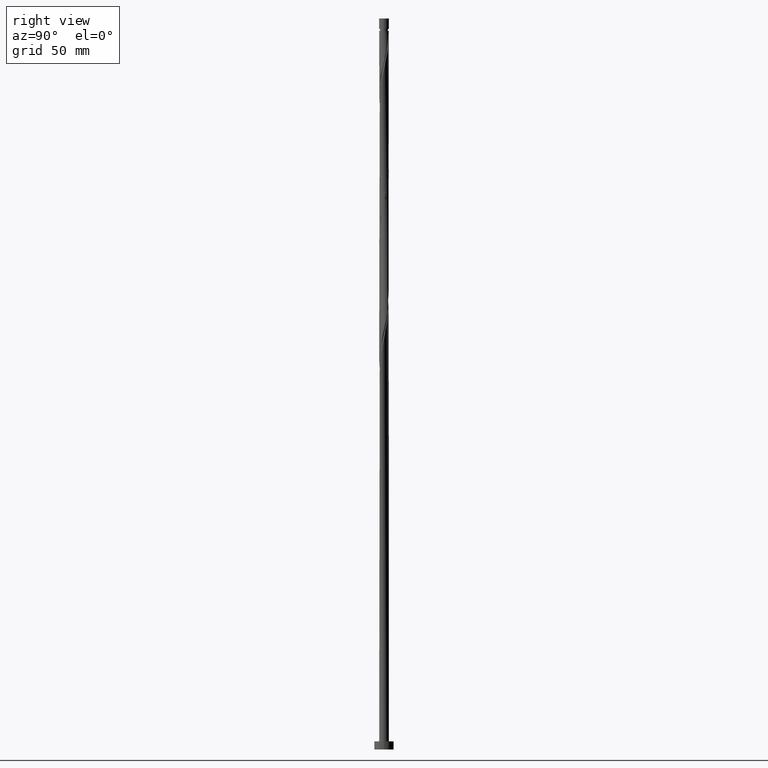
[diagram: clean part render]
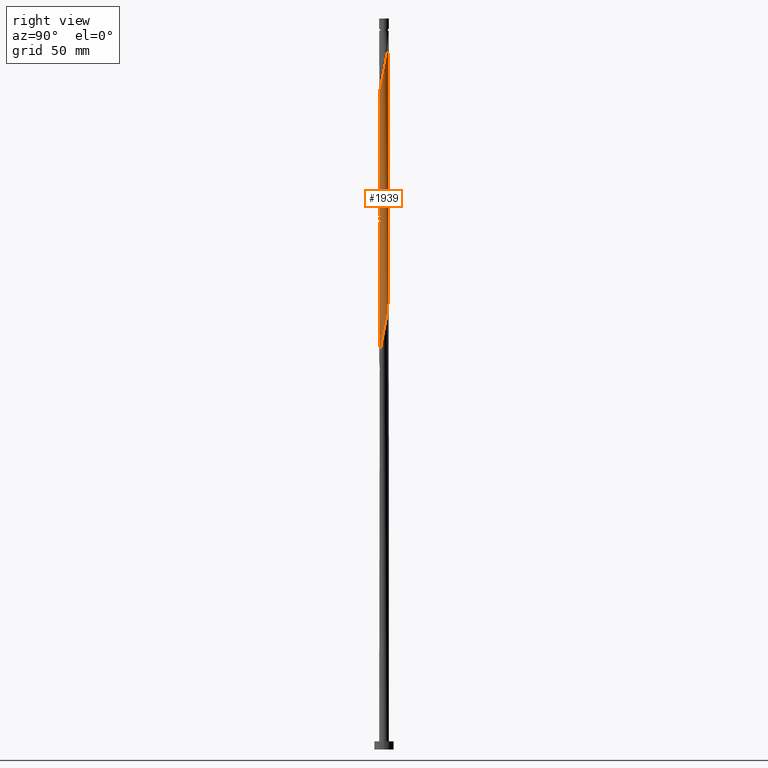
[diagram: same view with one face highlighted and labeled with its STEP entity id]
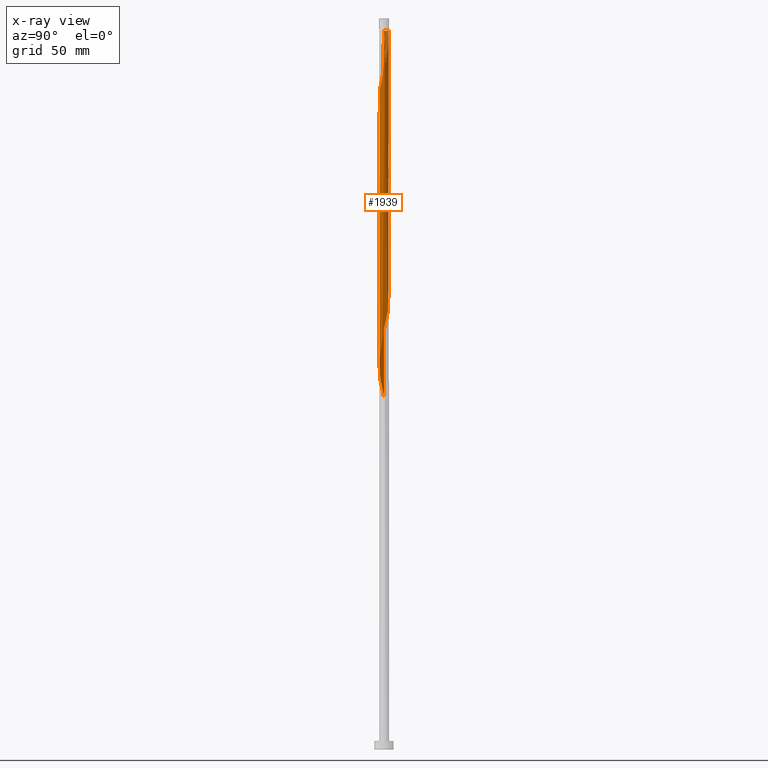
[diagram: x-ray of the same camera — body ghosted, the highlighted face saturated]
A machine part, right view. The second image highlights one B-rep face of the part: STEP entity #1939.
The next image is the same camera in x-ray: the body ghosted, the highlighted face saturated — about 0% of this face is hidden behind the body in this view.
In plain terms, the highlighted cylindrical surface (bore or boss wall) has radius 3 mm, axis along (-0, -0, -1).
Its self-contained STEP definition (entity closure, byte-faithful):
#1 = CARTESIAN_POINT ( 'NONE',  ( 0.8865571881340386096, 2.881201374597972098, 276.4699574549397312 ) ) ;
#12 = CARTESIAN_POINT ( 'NONE',  ( 1.921660071883963816, 2.322612231291373508, 271.2616241216064168 ) ) ;
#32 = CARTESIAN_POINT ( 'NONE',  ( -0.5969924622639762868, -2.939999999999999947, 236.1053741216064168 ) ) ;
#39 = ORIENTED_EDGE ( 'NONE', *, *, #650, .F. ) ;
#40 = CARTESIAN_POINT ( 'NONE',  ( -1.159086966227606652, -2.767041272681216579, 233.5012074549397312 ) ) ;
#48 = CARTESIAN_POINT ( 'NONE',  ( 2.487746701027917062, -1.676638408102569588, 251.7303741216064736 ) ) ;
#52 = CARTESIAN_POINT ( 'NONE',  ( 2.664207629581487602, -1.410426430302975209, 414.4907907882732161 ) ) ;
#55 = CARTESIAN_POINT ( 'NONE',  ( -2.664207629581484937, -1.410426430302971212, 224.3866241216063884 ) ) ;
#56 = EDGE_CURVE ( 'NONE', #1948, #1975, #1019, .T. ) ;
#62 = CARTESIAN_POINT ( 'NONE',  ( -0.5735401742041612572, -2.944664950138451864, 397.5637074549397880 ) ) ;
#65 = ORIENTED_EDGE ( 'NONE', *, *, #56, .T. ) ;
#75 = CARTESIAN_POINT ( 'NONE',  ( 1.159086966227607096, -2.767041272681220576, 405.3762074549398449 ) ) ;
#82 = CARTESIAN_POINT ( 'NONE',  ( 2.998798625402026907, -0.3074277363939145191, 341.5741241216063031 ) ) ;
#117 = CARTESIAN_POINT ( 'NONE',  ( 3.000000000000000000, -0.005977960122782764903, 342.9025508784193903 ) ) ;
#126 = CARTESIAN_POINT ( 'NONE',  ( 2.888176173499367394, 0.8635643575599492028, 263.4491241216063599 ) ) ;
#137 = CARTESIAN_POINT ( 'NONE',  ( -1.903086606305704365, 2.337855080563637777, 289.4907907882730456 ) ) ;
#144 = CARTESIAN_POINT ( 'NONE',  ( -2.767041272681216579, 1.159086966227606208, 296.0012074549397312 ) ) ;
#148 = CARTESIAN_POINT ( 'NONE',  ( 0.000000000000000000, 0.000000000000000000, 444.4387074549397312 ) ) ;
#152 = CARTESIAN_POINT ( 'NONE',  ( -2.129757576223800353, -2.112849418798540491, 311.6262074549397312 ) ) ;
#159 = CARTESIAN_POINT ( 'NONE',  ( -1.159086966227606652, -2.767041272681216579, 316.8345407882730456 ) ) ;
#163 = CARTESIAN_POINT ( 'NONE',  ( -3.000000000000004885, 1.538591617271993289E-15, 379.2818438102762570 ) ) ;
#169 = CARTESIAN_POINT ( 'NONE',  ( -2.322612231291373952, 1.921660071883963816, 375.4282907882731024 ) ) ;
#180 = CARTESIAN_POINT ( 'NONE',  ( -2.888176173499367394, -0.8635643575599495358, 221.7824574549397312 ) ) ;
#185 = CARTESIAN_POINT ( 'NONE',  ( 1.656756518304341563, 2.501031355072564022, 434.0220407882730456 ) ) ;
#195 = CARTESIAN_POINT ( 'NONE',  ( -1.656756518304341119, -2.501031355072564022, 392.3553741216064168 ) ) ;
#199 = ORIENTED_EDGE ( 'NONE', *, *, #1603, .F. ) ;
#201 = CARTESIAN_POINT ( 'NONE',  ( -0.8865571881340394977, -2.881201374597972098, 234.8032907882730740 ) ) ;
#206 = CARTESIAN_POINT ( 'NONE',  ( -1.410426430302973655, -2.664207629581488934, 393.6574574549397880 ) ) ;
#216 = CARTESIAN_POINT ( 'NONE',  ( -3.000000000000004441, 1.538591617271993289E-15, 379.2818438102762570 ) ) ;
#226 = CARTESIAN_POINT ( 'NONE',  ( 2.999976176089777624, -0.01195587277277147115, 342.8762074549397880 ) ) ;
#230 = CARTESIAN_POINT ( 'NONE',  ( 2.767041272681220576, 1.159086966227606874, 426.2095407882731024 ) ) ;
#236 = CARTESIAN_POINT ( 'NONE',  ( 2.129757576223800353, 2.112849418798540047, 353.2928741216064168 ) ) ;
#262 = EDGE_CURVE ( 'NONE', #631, #511, #791, .T. ) ;
#270 = CARTESIAN_POINT ( 'NONE',  ( -0.01195587277276973816, 2.999976176089781621, 441.8345407882731024 ) ) ;
#275 = CARTESIAN_POINT ( 'NONE',  ( 0.8635643575599494248, -2.888176173499367394, 325.9491241216063599 ) ) ;
#285 = CARTESIAN_POINT ( 'NONE',  ( -0.5969924622639762868, -2.939999999999999947, 319.4387074549397880 ) ) ;
#295 = CARTESIAN_POINT ( 'NONE',  ( 0.3074277363939131313, 2.998798625402026907, 279.0741241216064168 ) ) ;
#304 = CARTESIAN_POINT ( 'NONE',  ( -2.501031355072561801, -1.656756518304338011, 309.0220407882731024 ) ) ;
#317 = CARTESIAN_POINT ( 'NONE',  ( -2.112849418798540047, 2.129757576223800797, 290.7928741216064168 ) ) ;
#329 = CARTESIAN_POINT ( 'NONE',  ( -2.999999999999999556, 0.005977960122793515851, 384.5692175450858485 ) ) ;
#336 = CARTESIAN_POINT ( 'NONE',  ( -1.136995393931460319, 2.776191901540426166, 368.9178741216064736 ) ) ;
#341 = CARTESIAN_POINT ( 'NONE',  ( -3.000000000000004885, -0.005977960122778104568, 379.3081973647935001 ) ) ;
#350 = VERTEX_POINT ( 'NONE', #163 ) ;
#356 = CARTESIAN_POINT ( 'NONE',  ( -2.112849418798543599, -2.129757576223802573, 389.7512074549397312 ) ) ;
#360 = CARTESIAN_POINT ( 'NONE',  ( -2.998798625402026907, 0.3074277363939129648, 383.2407907882729887 ) ) ;
#364 = CARTESIAN_POINT ( 'NONE',  ( 2.337855080563639110, -1.903086606305708361, 411.8866241216064736 ) ) ;
#371 = CARTESIAN_POINT ( 'NONE',  ( 3.000000000000000444, 1.036289447853704348E-15, 342.9289044329366334 ) ) ;
#379 = CARTESIAN_POINT ( 'NONE',  ( 0.5969924622639766199, 2.939999999999999947, 361.1053741216064168 ) ) ;
#381 = AXIS2_PLACEMENT_3D ( 'NONE', #1040, #426, #752 ) ;
#389 = CARTESIAN_POINT ( 'NONE',  ( -0.8635643575599494248, 2.888176173499367394, 367.6157907882730456 ) ) ;
#396 = DIRECTION ( 'NONE',  ( -0.000000000000000000, -0.000000000000000000, -1.000000000000000000 ) ) ;
#399 = CARTESIAN_POINT ( 'NONE',  ( 0.3074277363939131313, 2.998798625402026907, 362.4074574549396743 ) ) ;
#410 = CARTESIAN_POINT ( 'NONE',  ( -3.000000000000000444, 0.000000000000000000, 452.1000000000000227 ) ) ;
#418 = CARTESIAN_POINT ( 'NONE',  ( 2.112849418798540047, -2.129757576223800353, 332.4595407882730456 ) ) ;
#421 = CARTESIAN_POINT ( 'NONE',  ( -0.3074277363939134644, 2.998798625402032236, 443.1366241216065305 ) ) ;
#426 = DIRECTION ( 'NONE',  ( -0.000000000000000000, -0.000000000000000000, -1.000000000000000000 ) ) ;
#428 = CARTESIAN_POINT ( 'NONE',  ( 1.656756518304338011, -2.501031355072561801, 329.8553741216063599 ) ) ;
#437 = CARTESIAN_POINT ( 'NONE',  ( -0.01195587277277125951, -2.999976176089777624, 322.0428741216064168 ) ) ;
#451 = CARTESIAN_POINT ( 'NONE',  ( 2.129757576223800353, 2.112849418798540047, 269.9595407882731024 ) ) ;
#459 = CARTESIAN_POINT ( 'NONE',  ( 2.944664950138447423, 0.5735401742041604800, 262.1470407882731024 ) ) ;
#470 = CARTESIAN_POINT ( 'NONE',  ( -2.776191901540426610, -1.136995393931459430, 223.0845407882730740 ) ) ;
#475 = CARTESIAN_POINT ( 'NONE',  ( -2.999999999999958256, 0.000000000000000000, 444.4387074549397312 ) ) ;
#479 = CARTESIAN_POINT ( 'NONE',  ( 0.2835159908483689817, -3.001153726777527897, 240.0116241216063884 ) ) ;
#484 = CARTESIAN_POINT ( 'NONE',  ( 0.8865571881340396088, -2.881201374597976539, 404.0741241216064736 ) ) ;
#496 = ORIENTED_EDGE ( 'NONE', *, *, #1273, .T. ) ;
#499 = CARTESIAN_POINT ( 'NONE',  ( -0.01195587277277125951, -2.999976176089777624, 238.7095407882731024 ) ) ;
#504 = CARTESIAN_POINT ( 'NONE',  ( 0.5969924622639760647, -2.940000000000003944, 402.7720407882731593 ) ) ;
#510 = CARTESIAN_POINT ( 'NONE',  ( -2.337855080563637777, -1.903086606305704365, 226.9907907882729887 ) ) ;
#511 = VERTEX_POINT ( 'NONE', #627 ) ;
#515 = CARTESIAN_POINT ( 'NONE',  ( 1.921660071883965815, -2.322612231291378393, 409.2824574549398449 ) ) ;
#524 = CARTESIAN_POINT ( 'NONE',  ( 2.944664950138451864, -0.5735401742041628115, 418.3970407882731024 ) ) ;
#550 = VERTEX_POINT ( 'NONE', #1860 ) ;
#560 = CARTESIAN_POINT ( 'NONE',  ( -0.5735401742041599249, 2.944664950138447423, 366.3137074549397880 ) ) ;
#562 = DIRECTION ( 'NONE',  ( -0.000000000000000000, -0.000000000000000000, -1.000000000000000000 ) ) ;
#573 = CARTESIAN_POINT ( 'NONE',  ( 1.431616744321172918, 2.652881170764462837, 273.8657907882731024 ) ) ;
#577 = CARTESIAN_POINT ( 'NONE',  ( 3.000000000000000444, 3.673940397442060361E-16, 452.1000000000000227 ) ) ;
#581 = CARTESIAN_POINT ( 'NONE',  ( -3.001153726777527897, -0.2835159908483692037, 302.5116241216063031 ) ) ;
#594 = CARTESIAN_POINT ( 'NONE',  ( -1.136995393931460319, 2.776191901540426166, 285.5845407882729887 ) ) ;
#603 = CARTESIAN_POINT ( 'NONE',  ( 1.159086966227606874, 2.767041272681216579, 275.1678741216064168 ) ) ;
#613 = CARTESIAN_POINT ( 'NONE',  ( 2.501031355072561801, 1.656756518304337567, 267.3553741216064168 ) ) ;
#618 = DIRECTION ( 'NONE',  ( -0.000000000000000000, -0.000000000000000000, -1.000000000000000000 ) ) ;
#627 = CARTESIAN_POINT ( 'NONE',  ( -0.5969924622640723211, 2.940000000000799751, 444.4387074549398449 ) ) ;
#631 = VERTEX_POINT ( 'NONE', #475 ) ;
#632 = CARTESIAN_POINT ( 'NONE',  ( -1.903086606305704365, 2.337855080563637777, 372.8241241216063599 ) ) ;
#643 = CARTESIAN_POINT ( 'NONE',  ( -2.944664950138447423, -0.5735401742041597029, 220.4803741216064452 ) ) ;
#647 = CARTESIAN_POINT ( 'NONE',  ( -2.322612231291378393, -1.921660071883965815, 388.4491241216063599 ) ) ;
#650 = EDGE_CURVE ( 'NONE', #350, #511, #1014, .T. ) ;
#652 = CARTESIAN_POINT ( 'NONE',  ( 2.652881170764462837, -1.431616744321172918, 253.0324574549396743 ) ) ;
#658 = CARTESIAN_POINT ( 'NONE',  ( 2.487746701027921059, 1.676638408102570255, 428.8137074549397880 ) ) ;
#670 = CARTESIAN_POINT ( 'NONE',  ( 1.676638408102569588, -2.487746701027921947, 407.9803741216064168 ) ) ;
#680 = CARTESIAN_POINT ( 'NONE',  ( 2.776191901540428830, -1.136995393931462317, 415.7928741216064736 ) ) ;
#686 = CARTESIAN_POINT ( 'NONE',  ( 2.888176173499367394, 0.8635643575599492028, 346.7824574549397880 ) ) ;
#688 = CARTESIAN_POINT ( 'NONE',  ( 2.939999999999999947, -0.5969924622639763978, 340.2720407882730456 ) ) ;
#733 = CARTESIAN_POINT ( 'NONE',  ( -2.944664950138447423, -0.5735401742041597029, 303.8137074549397312 ) ) ;
#744 = CARTESIAN_POINT ( 'NONE',  ( -1.410426430302971434, 2.664207629581484493, 286.8866241216063031 ) ) ;
#752 = DIRECTION ( 'NONE',  ( -1.000000000000000000, 0.000000000000000000, 0.000000000000000000 ) ) ;
#754 = ORIENTED_EDGE ( 'NONE', *, *, #56, .F. ) ;
#755 = CARTESIAN_POINT ( 'NONE',  ( -2.322612231291373952, 1.921660071883963816, 292.0949574549397312 ) ) ;
#762 = CARTESIAN_POINT ( 'NONE',  ( 3.000000000000000444, 3.673940397442060361E-16, 444.4387074549398449 ) ) ;
#766 = CARTESIAN_POINT ( 'NONE',  ( 1.676638408102569811, 2.487746701027917062, 272.5637074549397880 ) ) ;
#776 = CARTESIAN_POINT ( 'NONE',  ( -3.000000000000000444, 0.000000000000000000, 452.1000000000000227 ) ) ;
#785 = CARTESIAN_POINT ( 'NONE',  ( -2.112849418798540047, 2.129757576223800797, 374.1262074549397880 ) ) ;
#791 = CIRCLE ( 'NONE', #1628, 2.999999999999958256 ) ;
#796 = CARTESIAN_POINT ( 'NONE',  ( 1.903086606305703476, -2.337855080563639110, 247.8241241216064168 ) ) ;
#803 = CARTESIAN_POINT ( 'NONE',  ( 2.940000000000003944, 0.5969924622639757317, 423.6053741216065305 ) ) ;
#806 = ORIENTED_EDGE ( 'NONE', *, *, #262, .T. ) ;
#808 = CARTESIAN_POINT ( 'NONE',  ( -2.881201374597972098, 0.8865571881340392757, 380.6366241216061894 ) ) ;
#812 = CARTESIAN_POINT ( 'NONE',  ( 2.881201374597976983, 0.8865571881340381655, 424.9074574549398449 ) ) ;
#822 = CARTESIAN_POINT ( 'NONE',  ( 0.3074277363939123542, -2.998798625402032236, 401.4699574549396743 ) ) ;
#829 = CARTESIAN_POINT ( 'NONE',  ( 0.01195587277277157696, 2.999976176089777624, 363.7095407882731024 ) ) ;
#834 = CARTESIAN_POINT ( 'NONE',  ( 0.01195587277277016316, -2.999976176089781621, 400.1678741216063599 ) ) ;
#851 = CARTESIAN_POINT ( 'NONE',  ( 2.337855080563639110, 1.903086606305703032, 351.9907907882731024 ) ) ;
#888 = CARTESIAN_POINT ( 'NONE',  ( -2.999976176089777624, 0.01195587277277179034, 301.2095407882731024 ) ) ;
#901 = CARTESIAN_POINT ( 'NONE',  ( -2.998798625402026907, 0.3074277363939129648, 299.9074574549396743 ) ) ;
#907 = CARTESIAN_POINT ( 'NONE',  ( 0.5969924622639766199, 2.939999999999999947, 277.7720407882731024 ) ) ;
#918 = CARTESIAN_POINT ( 'NONE',  ( 2.337855080563639110, 1.903086606305703032, 268.6574574549396743 ) ) ;
#928 = CARTESIAN_POINT ( 'NONE',  ( 2.881201374597972098, -0.8865571881340383875, 255.6366241216063884 ) ) ;
#938 = CARTESIAN_POINT ( 'NONE',  ( -2.487746701027918395, 1.676638408102568256, 376.7303741216064168 ) ) ;
#946 = CARTESIAN_POINT ( 'NONE',  ( -0.3074277363939131313, -2.998798625402026907, 237.4074574549397028 ) ) ;
#953 = CARTESIAN_POINT ( 'NONE',  ( -0.8635643575599516453, -2.888176173499371391, 396.2616241216064736 ) ) ;
#963 = CARTESIAN_POINT ( 'NONE',  ( 2.652881170764467278, 1.431616744321173140, 427.5116241216064736 ) ) ;
#968 = CARTESIAN_POINT ( 'NONE',  ( -2.501031355072561801, -1.656756518304338011, 225.6887074549397312 ) ) ;
#971 = CARTESIAN_POINT ( 'NONE',  ( -2.767041272681221020, -1.159086966227606874, 384.5428741216064736 ) ) ;
#977 = CARTESIAN_POINT ( 'NONE',  ( -2.939999999999999947, 0.5969924622639762868, 381.9387074549396743 ) ) ;
#987 = LINE ( 'NONE', #410, #1863 ) ;
#998 = CARTESIAN_POINT ( 'NONE',  ( 0.8865571881340386096, 2.881201374597972098, 359.8032907882729887 ) ) ;
#1014 =( BOUNDED_CURVE ( )  B_SPLINE_CURVE ( 2, ( #216, #341, #1872, #1130, #1258, #1296, #971, #1425, #1278, #647, #356, #1759, #195, #206, #1111, #953, #62, #1908, #834, #822, #504, #484, #75, #1435, #670, #515, #1748, #364, #1726, #52, #680, #1916, #524, #1140, #1607, #1581, #803, #812, #230, #963, #658, #1405, #1103, #1716, #185, #1571, #1415, #1267, #1893, #1036, #270, #421, #1017 ),
 .UNSPECIFIED., .F., .T. ) 
 B_SPLINE_CURVE_WITH_KNOTS ( ( 3, 2, 2, 2, 2, 2, 2, 2, 2, 2, 2, 2, 2, 2, 2, 2, 2, 2, 2, 2, 2, 2, 2, 2, 2, 2, 3 ),
 ( 0.5545286902180870392, 0.5546875000000000000, 0.5625000000000000000, 0.5703125000000000000, 0.5781250000000000000, 0.5859375000000000000, 0.5937500000000000000, 0.6015625000000000000, 0.6093750000000000000, 0.6171875000000000000, 0.6250000000000000000, 0.6328125000000000000, 0.6406250000000000000, 0.6484375000000000000, 0.6562500000000000000, 0.6640625000000000000, 0.6718750000000000000, 0.6796875000000000000, 0.6875000000000000000, 0.6953125000000000000, 0.7031250000000000000, 0.7109375000000000000, 0.7187500000000000000, 0.7265625000000000000, 0.7343750000000000000, 0.7421875000000000000, 0.7500000000000000000 ),
 .UNSPECIFIED. ) 
 CURVE ( )  GEOMETRIC_REPRESENTATION_ITEM ( )  RATIONAL_B_SPLINE_CURVE ( ( 0.9089165573359746508, 0.9090019243628795209, 0.9090909090909713441, 0.9047133878838773402, 0.9090909090909713441, 0.9047133878838773402, 0.9090909090909713441, 0.9047133878838773402, 0.9090909090909713441, 0.9047133878838773402, 0.9090909090909713441, 0.9047133878838773402, 0.9090909090909713441, 0.9047133878838773402, 0.9090909090909713441, 0.9047133878838773402, 0.9090909090909713441, 0.9047133878838773402, 0.9090909090909713441, 0.9047133878838773402, 0.9090909090909713441, 0.9047133878838773402, 0.9090909090909713441, 0.9047133878838773402, 0.9090909090909713441, 0.9047133878838773402, 0.9090909090909713441, 0.9047133878838773402, 0.9090909090909713441, 0.9047133878838773402, 0.9090909090909713441, 0.9047133878838773402, 0.9090909090909713441, 0.9047133878838773402, 0.9090909090909713441, 0.9047133878838773402, 0.9090909090909713441, 0.9047133878838773402, 0.9090909090909713441, 0.9047133878838773402, 0.9090909090909713441, 0.9047133878838773402, 0.9090909090909713441, 0.9047133878838773402, 0.9090909090909713441, 0.9047133878838773402, 0.9090909090909713441, 0.9047133878838773402, 0.9090909090909713441, 0.9047133878838773402, 0.9090909090909713441, 0.9047133878838773402, 0.9090909090909713441 ) ) 
 REPRESENTATION_ITEM ( '' )  );
#1017 = CARTESIAN_POINT ( 'NONE',  ( -0.5969924622640723211, 2.940000000000799751, 444.4387074549398449 ) ) ;
#1019 = LINE ( 'NONE', #577, #1758 ) ;
#1032 = CARTESIAN_POINT ( 'NONE',  ( 2.776191901540427054, 1.136995393931459430, 348.0845407882731024 ) ) ;
#1034 = CARTESIAN_POINT ( 'NONE',  ( 3.000000000000000444, 1.036289447853704348E-15, 342.9289044329366334 ) ) ;
#1036 = CARTESIAN_POINT ( 'NONE',  ( 0.2835159908483711466, 3.001153726777532338, 440.5324574549399017 ) ) ;
#1040 = CARTESIAN_POINT ( 'NONE',  ( 0.000000000000000000, 0.000000000000000000, 452.1000000000000227 ) ) ;
#1042 = CARTESIAN_POINT ( 'NONE',  ( -0.8635643575599494248, 2.888176173499367394, 284.2824574549397312 ) ) ;
#1048 = CARTESIAN_POINT ( 'NONE',  ( 1.136995393931459430, -2.776191901540427054, 327.2512074549396175 ) ) ;
#1055 = CARTESIAN_POINT ( 'NONE',  ( -0.3074277363939131313, -2.998798625402026907, 320.7407907882730456 ) ) ;
#1068 = CARTESIAN_POINT ( 'NONE',  ( 0.2835159908483689817, -3.001153726777527897, 323.3449574549396743 ) ) ;
#1076 =( BOUNDED_CURVE ( )  B_SPLINE_CURVE ( 2, ( #1099, #329, #1282, #360, #977, #808, #1593, #1391, #938, #169, #785, #632, #1865, #1712, #336, #389, #560, #1799, #829, #399, #379, #998, #1602, #1613, #1323, #1302, #236, #851, #1312, #1135, #1032, #686, #1911, #1464, #371 ),
 .UNSPECIFIED., .F., .T. ) 
 B_SPLINE_CURVE_WITH_KNOTS ( ( 3, 2, 2, 2, 2, 2, 2, 2, 2, 2, 2, 2, 2, 2, 2, 2, 2, 3 ),
 ( 0.4295286902180874278, 0.4296875000000000000, 0.4375000000000000000, 0.4453125000000000000, 0.4531250000000000000, 0.4609375000000000000, 0.4687500000000000000, 0.4765625000000000000, 0.4843750000000000000, 0.4921875000000000000, 0.5000000000000000000, 0.5078125000000000000, 0.5156250000000000000, 0.5234375000000000000, 0.5312500000000000000, 0.5390625000000000000, 0.5468750000000000000, 0.5545286902180871502 ),
 .UNSPECIFIED. ) 
 CURVE ( )  GEOMETRIC_REPRESENTATION_ITEM ( )  RATIONAL_B_SPLINE_CURVE ( ( 0.9089165573359702099, 0.9090019243628748580, 0.9090909090909664592, 0.9047133878838725662, 0.9090909090909664592, 0.9047133878838725662, 0.9090909090909664592, 0.9047133878838725662, 0.9090909090909664592, 0.9047133878838725662, 0.9090909090909664592, 0.9047133878838725662, 0.9090909090909664592, 0.9047133878838725662, 0.9090909090909664592, 0.9047133878838725662, 0.9090909090909664592, 0.9047133878838725662, 0.9090909090909664592, 0.9047133878838725662, 0.9090909090909664592, 0.9047133878838725662, 0.9090909090909664592, 0.9047133878838725662, 0.9090909090909664592, 0.9047133878838725662, 0.9090909090909664592, 0.9047133878838725662, 0.9090909090909664592, 0.9047133878838725662, 0.9090909090909664592, 0.9047133878838725662, 0.9090909090909664592, 0.9048023726119643895, 0.9089165573359698769 ) ) 
 REPRESENTATION_ITEM ( '' )  );
#1080 = CARTESIAN_POINT ( 'NONE',  ( 2.939999999999999947, -0.5969924622639763978, 256.9387074549396743 ) ) ;
#1099 = CARTESIAN_POINT ( 'NONE',  ( -3.000000000000000444, -7.455319768731686067E-16, 384.5955710996032053 ) ) ;
#1103 = CARTESIAN_POINT ( 'NONE',  ( 2.112849418798543599, 2.129757576223802129, 431.4178741216063599 ) ) ;
#1107 = CARTESIAN_POINT ( 'NONE',  ( 0.5735401742041597029, -2.944664950138447868, 241.3137074549397880 ) ) ;
#1111 = CARTESIAN_POINT ( 'NONE',  ( -1.136995393931462317, -2.776191901540429274, 394.9595407882729887 ) ) ;
#1116 = CARTESIAN_POINT ( 'NONE',  ( -1.431616744321172474, -2.652881170764462837, 232.1991241216063599 ) ) ;
#1125 = CARTESIAN_POINT ( 'NONE',  ( -3.000000000000002220, -0.2894394447869356179, 219.2048845383525872 ) ) ;
#1130 = CARTESIAN_POINT ( 'NONE',  ( -2.998798625402032236, -0.3074277363939125207, 380.6366241216064736 ) ) ;
#1132 = VERTEX_POINT ( 'NONE', #1914 ) ;
#1135 = CARTESIAN_POINT ( 'NONE',  ( 2.664207629581484493, 1.410426430302972101, 349.3866241216063599 ) ) ;
#1140 = CARTESIAN_POINT ( 'NONE',  ( 3.001153726777532338, -0.2835159908483710356, 419.6991241216063599 ) ) ;
#1147 = CARTESIAN_POINT ( 'NONE',  ( 2.767041272681216579, -1.159086966227606652, 337.6678741216064168 ) ) ;
#1189 = CARTESIAN_POINT ( 'NONE',  ( 3.001153726777527897, 0.2835159908483688151, 260.8449574549396175 ) ) ;
#1198 = CARTESIAN_POINT ( 'NONE',  ( 2.652881170764462837, -1.431616744321172918, 336.3657907882731024 ) ) ;
#1204 = FACE_OUTER_BOUND ( 'NONE', #1437, .T. ) ;
#1208 = CARTESIAN_POINT ( 'NONE',  ( -0.5735401742041599249, 2.944664950138447423, 282.9803741216064168 ) ) ;
#1220 = CARTESIAN_POINT ( 'NONE',  ( -1.676638408102568256, -2.487746701027918395, 314.2303741216063599 ) ) ;
#1224 = DIRECTION ( 'NONE',  ( -1.000000000000000000, 0.000000000000000000, 0.000000000000000000 ) ) ;
#1228 = CARTESIAN_POINT ( 'NONE',  ( 2.776191901540427054, 1.136995393931459430, 264.7512074549397312 ) ) ;
#1246 = ORIENTED_EDGE ( 'NONE', *, *, #1370, .F. ) ;
#1248 = CARTESIAN_POINT ( 'NONE',  ( 2.112849418798540047, -2.129757576223800353, 249.1262074549397596 ) ) ;
#1258 = CARTESIAN_POINT ( 'NONE',  ( -2.940000000000003944, -0.5969924622639761758, 381.9387074549397312 ) ) ;
#1267 = CARTESIAN_POINT ( 'NONE',  ( 0.8635643575599520894, 2.888176173499370947, 437.9282907882730456 ) ) ;
#1272 = CARTESIAN_POINT ( 'NONE',  ( 1.656756518304338011, -2.501031355072561801, 246.5220407882730456 ) ) ;
#1273 = EDGE_CURVE ( 'NONE', #350, #1132, #987, .T. ) ;
#1278 = CARTESIAN_POINT ( 'NONE',  ( -2.487746701027921503, -1.676638408102569588, 387.1470407882731024 ) ) ;
#1282 = CARTESIAN_POINT ( 'NONE',  ( -2.999976176089777624, 0.01195587277277179034, 384.5428741216063031 ) ) ;
#1289 = ORIENTED_EDGE ( 'NONE', *, *, #1427, .F. ) ;
#1296 = CARTESIAN_POINT ( 'NONE',  ( -2.881201374597976539, -0.8865571881340398308, 383.2407907882732161 ) ) ;
#1302 = CARTESIAN_POINT ( 'NONE',  ( 1.921660071883963816, 2.322612231291373508, 354.5949574549397312 ) ) ;
#1312 = CARTESIAN_POINT ( 'NONE',  ( 2.501031355072561801, 1.656756518304337567, 350.6887074549397880 ) ) ;
#1323 = CARTESIAN_POINT ( 'NONE',  ( 1.676638408102569811, 2.487746701027917062, 355.8970407882731024 ) ) ;
#1343 = CARTESIAN_POINT ( 'NONE',  ( -2.881201374597972098, 0.8865571881340392757, 297.3032907882730456 ) ) ;
#1354 = CARTESIAN_POINT ( 'NONE',  ( 2.767041272681216579, -1.159086966227606652, 254.3345407882731024 ) ) ;
#1363 = CARTESIAN_POINT ( 'NONE',  ( -2.664207629581484937, -1.410426430302971212, 307.7199574549397312 ) ) ;
#1370 = EDGE_CURVE ( 'NONE', #1975, #1132, #1977, .T. ) ;
#1373 = CARTESIAN_POINT ( 'NONE',  ( -2.939999999999999947, 0.5969924622639762868, 298.6053741216065305 ) ) ;
#1384 = CARTESIAN_POINT ( 'NONE',  ( -0.8865571881340394977, -2.881201374597972098, 318.1366241216063599 ) ) ;
#1391 = CARTESIAN_POINT ( 'NONE',  ( -2.652881170764462837, 1.431616744321172474, 378.0324574549396743 ) ) ;
#1401 = CARTESIAN_POINT ( 'NONE',  ( -3.000000000000000444, -7.455319768731686067E-16, 217.9289044329365481 ) ) ;
#1405 = CARTESIAN_POINT ( 'NONE',  ( 2.322612231291378393, 1.921660071883965148, 430.1157907882731024 ) ) ;
#1415 = CARTESIAN_POINT ( 'NONE',  ( 1.136995393931462317, 2.776191901540428830, 436.6262074549397312 ) ) ;
#1420 = CARTESIAN_POINT ( 'NONE',  ( 2.322612231291373952, -1.921660071883963816, 250.4282907882731308 ) ) ;
#1425 = CARTESIAN_POINT ( 'NONE',  ( -2.652881170764467278, -1.431616744321173362, 385.8449574549397880 ) ) ;
#1427 = EDGE_CURVE ( 'NONE', #631, #550, #1567, .T. ) ;
#1430 = DIRECTION ( 'NONE',  ( -0.000000000000000000, -0.000000000000000000, -1.000000000000000000 ) ) ;
#1435 = CARTESIAN_POINT ( 'NONE',  ( 1.431616744321173362, -2.652881170764467278, 406.6782907882731024 ) ) ;
#1437 = EDGE_LOOP ( 'NONE', ( #1289, #806, #39, #496, #1246, #754, #65, #199 ) ) ;
#1464 = CARTESIAN_POINT ( 'NONE',  ( 3.000000000000000444, 0.2894394447869436116, 344.2048845383526441 ) ) ;
#1505 = CARTESIAN_POINT ( 'NONE',  ( -2.652881170764462837, 1.431616744321172474, 294.6991241216064168 ) ) ;
#1514 = CARTESIAN_POINT ( 'NONE',  ( 2.322612231291373952, -1.921660071883963816, 333.7616241216064168 ) ) ;
#1523 = CARTESIAN_POINT ( 'NONE',  ( -2.776191901540426610, -1.136995393931459430, 306.4178741216063599 ) ) ;
#1533 = CARTESIAN_POINT ( 'NONE',  ( -1.921660071883963816, -2.322612231291373952, 312.9282907882731024 ) ) ;
#1547 = CARTESIAN_POINT ( 'NONE',  ( -1.656756518304338233, 2.501031355072561801, 288.1887074549397312 ) ) ;
#1557 = CARTESIAN_POINT ( 'NONE',  ( -2.129757576223800353, -2.112849418798540491, 228.2928741216064452 ) ) ;
#1567 = LINE ( 'NONE', #776, #1578 ) ;
#1571 = CARTESIAN_POINT ( 'NONE',  ( 1.410426430302975209, 2.664207629581486714, 435.3241241216064736 ) ) ;
#1578 = VECTOR ( 'NONE', #1430, 1000.000000000000000 ) ;
#1581 = CARTESIAN_POINT ( 'NONE',  ( 2.998798625402032236, 0.3074277363939136865, 422.3032907882730456 ) ) ;
#1587 = CARTESIAN_POINT ( 'NONE',  ( 1.410426430302970990, -2.664207629581484937, 245.2199574549397028 ) ) ;
#1593 = CARTESIAN_POINT ( 'NONE',  ( -2.767041272681216579, 1.159086966227606208, 379.3345407882730456 ) ) ;
#1602 = CARTESIAN_POINT ( 'NONE',  ( 1.159086966227606874, 2.767041272681216579, 358.5012074549397312 ) ) ;
#1603 = EDGE_CURVE ( 'NONE', #550, #1975, #1076, .T. ) ;
#1607 = CARTESIAN_POINT ( 'NONE',  ( 2.999976176089781621, 0.01195587277276994806, 421.0012074549397880 ) ) ;
#1613 = CARTESIAN_POINT ( 'NONE',  ( 1.431616744321172918, 2.652881170764462837, 357.1991241216063599 ) ) ;
#1628 = AXIS2_PLACEMENT_3D ( 'NONE', #148, #618, #1224 ) ;
#1654 = CARTESIAN_POINT ( 'NONE',  ( 2.998798625402026907, -0.3074277363939145191, 258.2407907882731024 ) ) ;
#1660 = CARTESIAN_POINT ( 'NONE',  ( 0.5735401742041597029, -2.944664950138447868, 324.6470407882731024 ) ) ;
#1672 = CARTESIAN_POINT ( 'NONE',  ( 0.01195587277277157696, 2.999976176089777624, 280.3762074549396743 ) ) ;
#1683 = CARTESIAN_POINT ( 'NONE',  ( -2.337855080563637777, -1.903086606305704365, 310.3241241216063599 ) ) ;
#1694 = CARTESIAN_POINT ( 'NONE',  ( -1.431616744321172474, -2.652881170764462837, 315.5324574549396743 ) ) ;
#1712 = CARTESIAN_POINT ( 'NONE',  ( -1.410426430302971434, 2.664207629581484493, 370.2199574549397880 ) ) ;
#1716 = CARTESIAN_POINT ( 'NONE',  ( 1.903086606305707695, 2.337855080563640442, 432.7199574549397880 ) ) ;
#1718 = CARTESIAN_POINT ( 'NONE',  ( 3.000000000000000444, 1.036289447853704348E-15, 342.9289044329366334 ) ) ;
#1726 = CARTESIAN_POINT ( 'NONE',  ( 2.501031355072564022, -1.656756518304341563, 413.1887074549397312 ) ) ;
#1732 = CARTESIAN_POINT ( 'NONE',  ( -1.676638408102568256, -2.487746701027918395, 230.8970407882730456 ) ) ;
#1748 = CARTESIAN_POINT ( 'NONE',  ( 2.129757576223802573, -2.112849418798543599, 410.5845407882730456 ) ) ;
#1758 = VECTOR ( 'NONE', #396, 1000.000000000000000 ) ;
#1759 = CARTESIAN_POINT ( 'NONE',  ( -1.903086606305708139, -2.337855080563639998, 391.0532907882730456 ) ) ;
#1799 = CARTESIAN_POINT ( 'NONE',  ( -0.2835159908483699254, 3.001153726777527453, 365.0116241216063031 ) ) ;
#1805 = CARTESIAN_POINT ( 'NONE',  ( 2.999976176089777624, -0.01195587277277147115, 259.5428741216064168 ) ) ;
#1813 = CYLINDRICAL_SURFACE ( 'NONE', #381, 3.000000000000000444 ) ;
#1815 = CARTESIAN_POINT ( 'NONE',  ( 2.487746701027917062, -1.676638408102569588, 335.0637074549397312 ) ) ;
#1825 = CARTESIAN_POINT ( 'NONE',  ( -0.2835159908483699254, 3.001153726777527453, 281.6782907882730456 ) ) ;
#1836 = CARTESIAN_POINT ( 'NONE',  ( -2.487746701027918395, 1.676638408102568256, 293.3970407882731024 ) ) ;
#1848 = CARTESIAN_POINT ( 'NONE',  ( 1.903086606305703476, -2.337855080563639110, 331.1574574549398449 ) ) ;
#1860 = CARTESIAN_POINT ( 'NONE',  ( -3.000000000000000444, -7.455319768731686067E-16, 384.5955710996032053 ) ) ;
#1863 = VECTOR ( 'NONE', #562, 1000.000000000000000 ) ;
#1865 = CARTESIAN_POINT ( 'NONE',  ( -1.656756518304338233, 2.501031355072561801, 371.5220407882731593 ) ) ;
#1872 = CARTESIAN_POINT ( 'NONE',  ( -2.999976176089781621, -0.01195587277277101491, 379.3345407882731024 ) ) ;
#1877 = CARTESIAN_POINT ( 'NONE',  ( -1.921660071883963816, -2.322612231291373952, 229.5949574549397312 ) ) ;
#1889 = CARTESIAN_POINT ( 'NONE',  ( 1.136995393931459430, -2.776191901540427054, 243.9178741216063884 ) ) ;
#1893 = CARTESIAN_POINT ( 'NONE',  ( 0.5735401742041631445, 2.944664950138451864, 439.2303741216064736 ) ) ;
#1897 = CARTESIAN_POINT ( 'NONE',  ( 0.8635643575599494248, -2.888176173499367394, 242.6157907882730456 ) ) ;
#1908 = CARTESIAN_POINT ( 'NONE',  ( -0.2835159908483707025, -3.001153726777531894, 398.8657907882731593 ) ) ;
#1911 = CARTESIAN_POINT ( 'NONE',  ( 2.944664950138447423, 0.5735401742041604800, 345.4803741216064736 ) ) ;
#1914 = CARTESIAN_POINT ( 'NONE',  ( -3.000000000000000444, -7.455319768731686067E-16, 217.9289044329365481 ) ) ;
#1916 = CARTESIAN_POINT ( 'NONE',  ( 2.888176173499371391, -0.8635643575599516453, 417.0949574549396743 ) ) ;
#1923 = CARTESIAN_POINT ( 'NONE',  ( 2.881201374597972098, -0.8865571881340383875, 338.9699574549396743 ) ) ;
#1939 = ADVANCED_FACE ( 'NONE', ( #1204 ), #1813, .T. ) ;
#1948 = VERTEX_POINT ( 'NONE', #762 ) ;
#1961 = CARTESIAN_POINT ( 'NONE',  ( 2.664207629581484493, 1.410426430302972101, 266.0532907882731024 ) ) ;
#1970 = CARTESIAN_POINT ( 'NONE',  ( -2.888176173499367394, -0.8635643575599495358, 305.1157907882731024 ) ) ;
#1975 = VERTEX_POINT ( 'NONE', #1718 ) ;
#1976 = CARTESIAN_POINT ( 'NONE',  ( 1.410426430302970990, -2.664207629581484937, 328.5532907882730456 ) ) ;
#1977 =( BOUNDED_CURVE ( )  B_SPLINE_CURVE ( 2, ( #1034, #117, #226, #82, #688, #1923, #1147, #1198, #1815, #1514, #418, #1848, #428, #1976, #1048, #275, #1660, #1068, #437, #1055, #285, #1384, #159, #1694, #1220, #1533, #152, #1683, #304, #1363, #1523, #1970, #733, #581, #888, #901, #1373, #1343, #144, #1505, #1836, #755, #317, #137, #1547, #744, #594, #1042, #1208, #1825, #1672, #295, #907, #1, #603, #573, #766, #12, #451, #918, #613, #1961, #1228, #126, #459, #1189, #1805, #1654, #1080, #928, #1354, #652, #48, #1420, #1248, #796, #1272, #1587, #1889, #1897, #1107, #479, #499, #946, #32, #201, #40, #1116, #1732, #1877, #1557, #510, #968, #55, #470, #180, #643, #1125, #1401 ),
 .UNSPECIFIED., .F., .T. ) 
 B_SPLINE_CURVE_WITH_KNOTS ( ( 3, 2, 2, 2, 2, 2, 2, 2, 2, 2, 2, 2, 2, 2, 2, 2, 2, 2, 2, 2, 2, 2, 2, 2, 2, 2, 2, 2, 2, 2, 2, 2, 2, 2, 2, 2, 2, 2, 2, 2, 2, 2, 2, 2, 2, 2, 2, 2, 2, 3 ),
 ( 0.5545286902180871502, 0.5546875000000000000, 0.5625000000000000000, 0.5703125000000000000, 0.5781250000000000000, 0.5859375000000000000, 0.5937500000000000000, 0.6015625000000000000, 0.6093750000000000000, 0.6171875000000000000, 0.6250000000000000000, 0.6328125000000000000, 0.6406250000000000000, 0.6484375000000000000, 0.6562500000000000000, 0.6640625000000000000, 0.6718750000000000000, 0.6796875000000000000, 0.6875000000000000000, 0.6953125000000000000, 0.7031250000000000000, 0.7109375000000000000, 0.7187500000000000000, 0.7265625000000000000, 0.7343750000000000000, 0.7421875000000000000, 0.7500000000000000000, 0.7578125000000000000, 0.7656250000000000000, 0.7734375000000000000, 0.7812500000000000000, 0.7890625000000000000, 0.7968750000000000000, 0.8046875000000000000, 0.8125000000000000000, 0.8203125000000000000, 0.8281250000000000000, 0.8359375000000000000, 0.8437500000000000000, 0.8515625000000000000, 0.8593750000000000000, 0.8671875000000000000, 0.8750000000000000000, 0.8828125000000000000, 0.8906250000000000000, 0.8984375000000000000, 0.9062500000000000000, 0.9140625000000000000, 0.9218750000000000000, 0.9295286902180873723 ),
 .UNSPECIFIED. ) 
 CURVE ( )  GEOMETRIC_REPRESENTATION_ITEM ( )  RATIONAL_B_SPLINE_CURVE ( ( 0.9089165573359698769, 0.9090019243628746359, 0.9090909090909664592, 0.9047133878838725662, 0.9090909090909664592, 0.9047133878838725662, 0.9090909090909664592, 0.9047133878838725662, 0.9090909090909664592, 0.9047133878838725662, 0.9090909090909664592, 0.9047133878838725662, 0.9090909090909664592, 0.9047133878838725662, 0.9090909090909664592, 0.9047133878838725662, 0.9090909090909664592, 0.9047133878838725662, 0.9090909090909664592, 0.9047133878838725662, 0.9090909090909664592, 0.9047133878838725662, 0.9090909090909664592, 0.9047133878838725662, 0.9090909090909664592, 0.9047133878838725662, 0.9090909090909664592, 0.9047133878838725662, 0.9090909090909664592, 0.9047133878838725662, 0.9090909090909664592, 0.9047133878838725662, 0.9090909090909664592, 0.9047133878838725662, 0.9090909090909664592, 0.9047133878838725662, 0.9090909090909664592, 0.9047133878838725662, 0.9090909090909664592, 0.9047133878838725662, 0.9090909090909664592, 0.9047133878838725662, 0.9090909090909664592, 0.9047133878838725662, 0.9090909090909664592, 0.9047133878838725662, 0.9090909090909664592, 0.9047133878838725662, 0.9090909090909664592, 0.9047133878838725662, 0.9090909090909664592, 0.9047133878838725662, 0.9090909090909664592, 0.9047133878838725662, 0.9090909090909664592, 0.9047133878838725662, 0.9090909090909664592, 0.9047133878838725662, 0.9090909090909664592, 0.9047133878838725662, 0.9090909090909664592, 0.9047133878838725662, 0.9090909090909664592, 0.9047133878838725662, 0.9090909090909664592, 0.9047133878838725662, 0.9090909090909664592, 0.9047133878838725662, 0.9090909090909664592, 0.9047133878838725662, 0.9090909090909664592, 0.9047133878838725662, 0.9090909090909664592, 0.9047133878838725662, 0.9090909090909664592, 0.9047133878838725662, 0.9090909090909664592, 0.9047133878838725662, 0.9090909090909664592, 0.9047133878838725662, 0.9090909090909664592, 0.9047133878838725662, 0.9090909090909664592, 0.9047133878838725662, 0.9090909090909664592, 0.9047133878838725662, 0.9090909090909664592, 0.9047133878838725662, 0.9090909090909664592, 0.9047133878838725662, 0.9090909090909664592, 0.9047133878838725662, 0.9090909090909664592, 0.9047133878838725662, 0.9090909090909664592, 0.9047133878838725662, 0.9090909090909664592, 0.9048023726119642784, 0.9089165573359699879 ) ) 
 REPRESENTATION_ITEM ( '' )  );